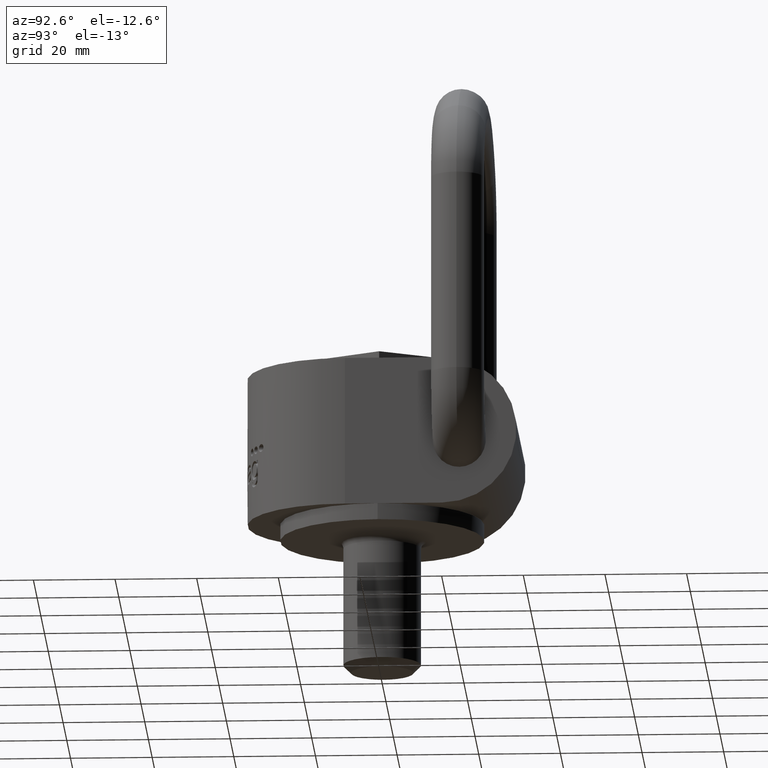
[diagram: clean part render]
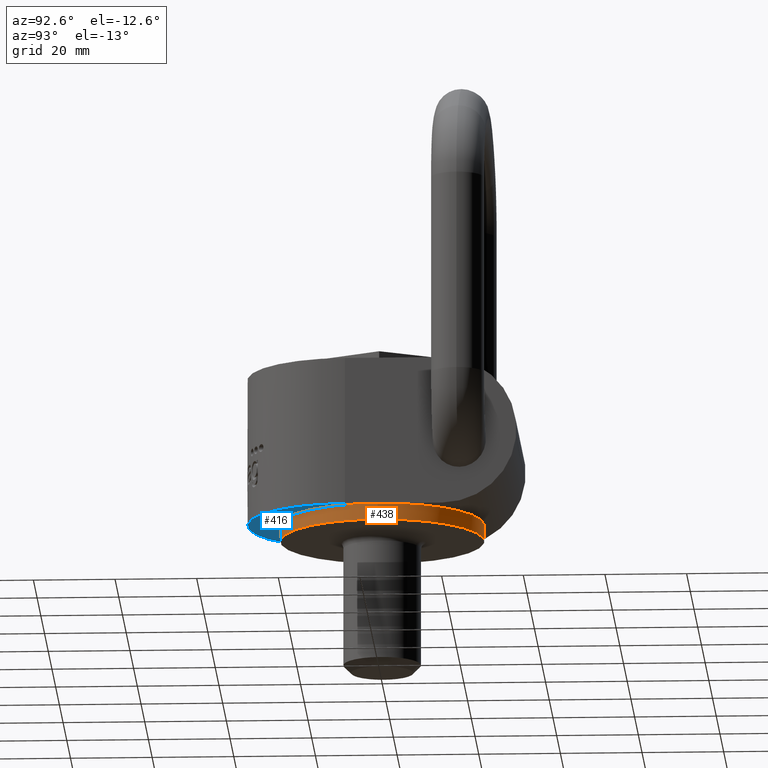
[diagram: same view with the hole feature highlighted: cylindrical wall and planar end face, labeled with their STEP entity ids]
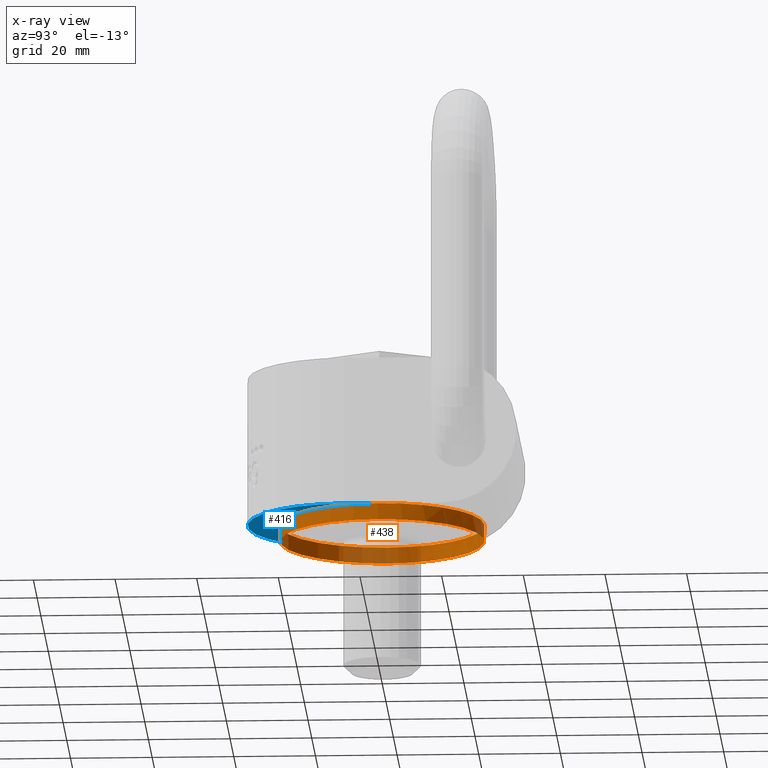
[diagram: x-ray of the same camera — body ghosted, the hole faces saturated]
A machine part, auxiliary view. The highlighted faces form one hole feature of diameter 50 mm: the cylindrical wall (entity #438, orange) and its adjacent planar end face (entity #416, blue) — they share a circular edge in the B-rep.
The next image is the same camera in x-ray (body ghosted, the hole faces saturated) — the bore reads through the body.
Wall:
#438=ADVANCED_FACE('',(#592,#593),#549,.T.);
#549=CYLINDRICAL_SURFACE('',#2533,25.);
#592=FACE_BOUND('',#667,.T.);
#593=FACE_BOUND('',#668,.T.);
#667=EDGE_LOOP('',(#1324));
#668=EDGE_LOOP('',(#1325,#1326,#1327,#1328));
#1119=CIRCLE('',#2501,25.);
#1120=CIRCLE('',#2503,25.);
#1121=CIRCLE('',#2505,25.);
#1126=CIRCLE('',#2531,25.);
#1127=CIRCLE('',#2532,25.);
#1324=ORIENTED_EDGE('',*,*,#2109,.F.);
#1325=ORIENTED_EDGE('',*,*,#2057,.T.);
#1326=ORIENTED_EDGE('',*,*,#2054,.T.);
#1327=ORIENTED_EDGE('',*,*,#2110,.T.);
#1328=ORIENTED_EDGE('',*,*,#2060,.T.);
#1840=VERTEX_POINT('',#3874);
#1841=VERTEX_POINT('',#3875);
#1843=VERTEX_POINT('',#3881);
#1844=VERTEX_POINT('',#3886);
#1875=VERTEX_POINT('',#3992);
#2054=EDGE_CURVE('',#1840,#1841,#1119,.T.);
#2057=EDGE_CURVE('',#1843,#1840,#1120,.T.);
#2060=EDGE_CURVE('',#1844,#1843,#1121,.T.);
#2109=EDGE_CURVE('',#1875,#1875,#1126,.T.);
#2110=EDGE_CURVE('',#1841,#1844,#1127,.T.);
#2501=AXIS2_PLACEMENT_3D('',#3873,#2679,#2680);
#2503=AXIS2_PLACEMENT_3D('',#3880,#2685,#2686);
#2505=AXIS2_PLACEMENT_3D('',#3885,#2691,#2692);
#2531=AXIS2_PLACEMENT_3D('',#3991,#2786,#2787);
#2532=AXIS2_PLACEMENT_3D('',#3993,#2788,#2789);
#2533=AXIS2_PLACEMENT_3D('',#3994,#2790,#2791);
#2679=DIRECTION('',(0.,0.,-1.));
#2680=DIRECTION('',(1.,1.22464679914735E-16,0.));
#2685=DIRECTION('',(0.,0.,-1.));
#2686=DIRECTION('',(1.,1.22464679914735E-16,0.));
#2691=DIRECTION('',(0.,0.,-1.));
#2692=DIRECTION('',(1.,1.22464679914735E-16,0.));
#2786=DIRECTION('',(0.,0.,-1.));
#2787=DIRECTION('',(1.,1.22464679914735E-16,0.));
#2788=DIRECTION('',(0.,0.,-1.));
#2789=DIRECTION('',(1.,1.22464679914735E-16,0.));
#2790=DIRECTION('',(0.,0.,1.));
#2791=DIRECTION('',(1.,0.,0.));
#3873=CARTESIAN_POINT('',(0.,0.,6.69539461904587E-14));
#3874=CARTESIAN_POINT('',(-25.,0.,1.25711407096018E-15));
#3875=CARTESIAN_POINT('',(-19.4148783153539,15.75,4.03032308381713E-15));
#3880=CARTESIAN_POINT('',(0.,0.,6.69539461904587E-14));
#3881=CARTESIAN_POINT('',(25.,0.,6.69539461904587E-14));
#3885=CARTESIAN_POINT('',(0.,0.,6.69539461904587E-14));
#3886=CARTESIAN_POINT('',(19.4148783153539,15.75,4.03032308381713E-15));
#3991=CARTESIAN_POINT('',(0.,0.,-3.99999999999993));
#3992=CARTESIAN_POINT('',(25.,3.06161699786838E-15,-3.99999999999993));
#3993=CARTESIAN_POINT('',(0.,0.,6.69539461904587E-14));
#3994=CARTESIAN_POINT('',(0.,0.,-3.99999999999993));
End face:
#245=PLANE('',#2504);
#307=FACE_OUTER_BOUND('',#642,.T.);
#416=ADVANCED_FACE('',(#307),#245,.F.);
#642=EDGE_LOOP('',(#1217,#1218,#1219,#1220));
#803=LINE('',#3882,#934);
#804=LINE('',#3883,#935);
#934=VECTOR('',#2687,1.);
#935=VECTOR('',#2688,1.);
#1117=CIRCLE('',#2498,25.);
#1120=CIRCLE('',#2503,25.);
#1217=ORIENTED_EDGE('',*,*,#2057,.F.);
#1218=ORIENTED_EDGE('',*,*,#2058,.F.);
#1219=ORIENTED_EDGE('',*,*,#2048,.T.);
#1220=ORIENTED_EDGE('',*,*,#2059,.T.);
#1834=VERTEX_POINT('',#3747);
#1835=VERTEX_POINT('',#3748);
#1840=VERTEX_POINT('',#3874);
#1843=VERTEX_POINT('',#3881);
#2048=EDGE_CURVE('',#1834,#1835,#1117,.T.);
#2057=EDGE_CURVE('',#1843,#1840,#1120,.T.);
#2058=EDGE_CURVE('',#1834,#1843,#803,.T.);
#2059=EDGE_CURVE('',#1835,#1840,#804,.T.);
#2498=AXIS2_PLACEMENT_3D('',#3746,#2671,#2672);
#2503=AXIS2_PLACEMENT_3D('',#3880,#2685,#2686);
#2504=AXIS2_PLACEMENT_3D('',#3884,#2689,#2690);
#2671=DIRECTION('',(0.,1.45752356053354E-16,-1.));
#2672=DIRECTION('',(0.,-1.,-1.45752356053354E-16));
#2685=DIRECTION('',(0.,0.,-1.));
#2686=DIRECTION('',(1.,1.22464679914735E-16,0.));
#2687=DIRECTION('',(0.,1.,1.45752356053354E-16));
#2688=DIRECTION('',(0.,1.,1.45752356053354E-16));
#2689=DIRECTION('',(0.,-1.45752356053354E-16,1.));
#2690=DIRECTION('',(0.,-1.,-1.45752356053354E-16));
#3746=CARTESIAN_POINT('',(0.,-8.00000000000001,0.));
#3747=CARTESIAN_POINT('',(25.,-8.00000000000001,9.10952225333453E-17));
#3748=CARTESIAN_POINT('',(-25.,-8.00000000000001,9.10952225333453E-17));
#3874=CARTESIAN_POINT('',(-25.,0.,1.25711407096018E-15));
#3880=CARTESIAN_POINT('',(0.,0.,6.69539461904587E-14));
#3881=CARTESIAN_POINT('',(25.,0.,6.69539461904587E-14));
#3882=CARTESIAN_POINT('',(25.,-33.,-3.5527136788005E-15));
#3883=CARTESIAN_POINT('',(-25.,-33.,-3.5527136788005E-15));
#3884=CARTESIAN_POINT('',(25.,-33.,-3.5527136788005E-15));